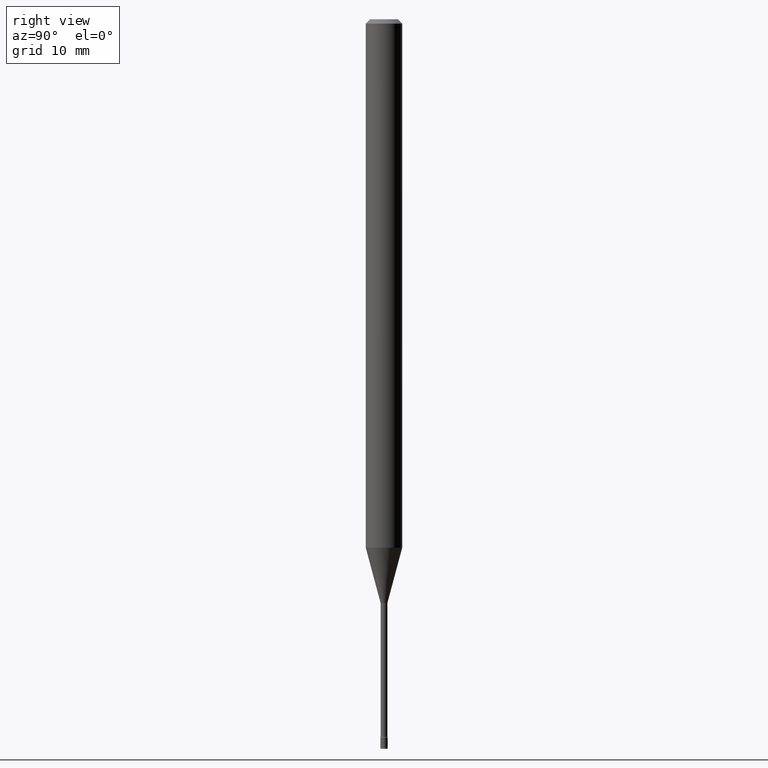
[diagram: clean part render]
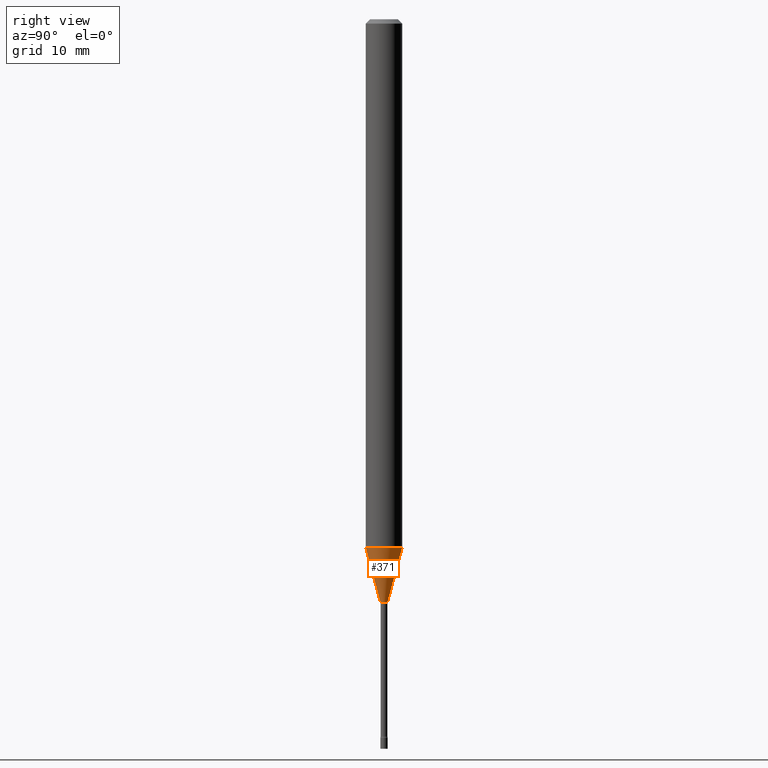
[diagram: same view with one face highlighted and labeled with its STEP entity id]
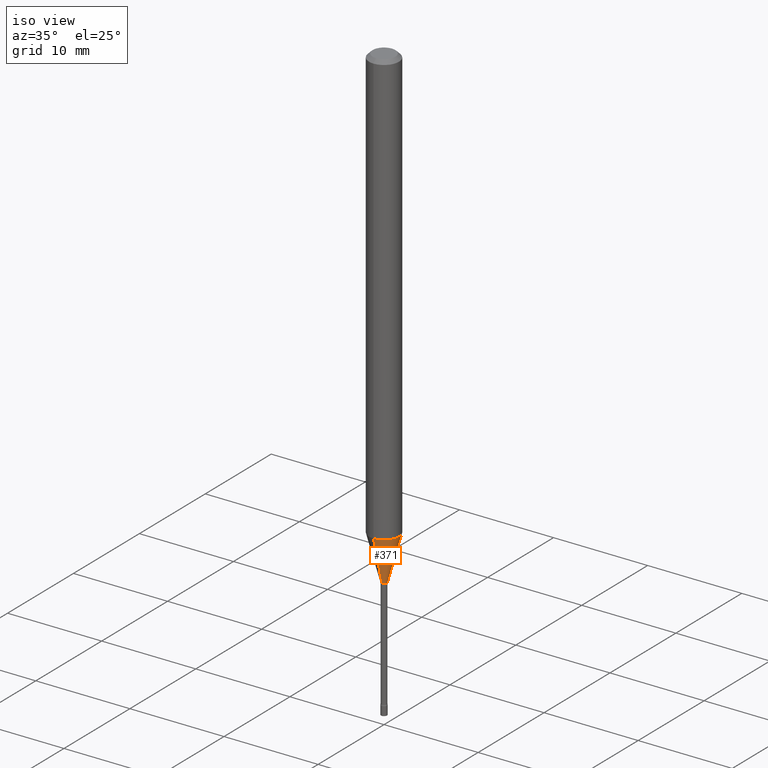
[diagram: same view with one face highlighted and labeled with its STEP entity id]
A machine part, right view. The second image highlights one B-rep face of the part: STEP entity #371.
A second angle (iso view) of the same face is appended — the face is thin or edge-on in the first view.
In plain terms, the highlighted conical surface has half-angle 15 deg.
Its self-contained STEP definition (entity closure, byte-faithful):
#7 = EDGE_CURVE ( 'NONE', #210, #359, #240, .T. ) ;
#8 = ORIENTED_EDGE ( 'NONE', *, *, #351, .F. ) ;
#54 = DIRECTION ( 'NONE',  ( -1.807323732225327773E-15, -0.2588190451025178529, 0.9659258262890690894 ) ) ;
#69 = AXIS2_PLACEMENT_3D ( 'NONE', #93, #419, #146 ) ;
#70 = CIRCLE ( 'NONE', #156, 0.06250000000000000000 ) ;
#74 = AXIS2_PLACEMENT_3D ( 'NONE', #465, #90, #296 ) ;
#87 = EDGE_CURVE ( 'NONE', #210, #129, #440, .T. ) ;
#90 = DIRECTION ( 'NONE',  ( -2.445543935234200466E-29, 3.491373749768806451E-15, 1.000000000000000000 ) ) ;
#93 = CARTESIAN_POINT ( 'NONE',  ( 4.886422999782796356E-29, -6.976087710349966842E-15, -1.998092501787273045 ) ) ;
#129 = VERTEX_POINT ( 'NONE', #342 ) ;
#138 = DIRECTION ( 'NONE',  ( -6.982962677686265922E-15, -1.000000000000000000, 4.370956789862821150E-15 ) ) ;
#140 = CARTESIAN_POINT ( 'NONE',  ( 4.427897988882776251E-29, -6.321475800253379253E-15, -1.810598421515879908 ) ) ;
#146 = DIRECTION ( 'NONE',  ( -6.982962677686265922E-15, -1.000000000000000000, 0.000000000000000000 ) ) ;
#156 = AXIS2_PLACEMENT_3D ( 'NONE', #140, #418, #138 ) ;
#202 = CARTESIAN_POINT ( 'NONE',  ( 8.712044494296022145E-17, 0.01226111260565700654, -1.998092501787273045 ) ) ;
#210 = VERTEX_POINT ( 'NONE', #271 ) ;
#239 = DIRECTION ( 'NONE',  ( 1.839019923739597554E-15, 0.2588190451025245697, 0.9659258262890670910 ) ) ;
#240 = LINE ( 'NONE', #300, #373 ) ;
#242 = VERTEX_POINT ( 'NONE', #517 ) ;
#271 = CARTESIAN_POINT ( 'NONE',  ( -8.561889171221134275E-17, -0.01226111260567096066, -1.998092501787273045 ) ) ;
#296 = DIRECTION ( 'NONE',  ( -6.982962677686265922E-15, -1.000000000000000000, 0.000000000000000000 ) ) ;
#300 = CARTESIAN_POINT ( 'NONE',  ( -8.561889171221134275E-17, -0.01226111260567096066, -1.998092501787273045 ) ) ;
#313 = CONICAL_SURFACE ( 'NONE', #74, 0.01226111260566398360, 0.2617993877991499074 ) ;
#339 = FACE_OUTER_BOUND ( 'NONE', #506, .T. ) ;
#342 = CARTESIAN_POINT ( 'NONE',  ( 2.656048273965336302E-16, 0.01226111260565700654, -1.998092501787273045 ) ) ;
#351 = EDGE_CURVE ( 'NONE', #359, #242, #70, .T. ) ;
#356 = VECTOR ( 'NONE', #239, 39.37007874015748854 ) ;
#359 = VERTEX_POINT ( 'NONE', #387 ) ;
#371 = ADVANCED_FACE ( 'NONE', ( #339 ), #313, .T. ) ;
#373 = VECTOR ( 'NONE', #54, 39.37007874015748143 ) ;
#387 = CARTESIAN_POINT ( 'NONE',  ( -4.364351673553473946E-16, -0.06250000000000632827, -1.810598421515879464 ) ) ;
#404 = ORIENTED_EDGE ( 'NONE', *, *, #444, .T. ) ;
#418 = DIRECTION ( 'NONE',  ( -2.445543935234200466E-29, 3.491373749768806451E-15, 1.000000000000000000 ) ) ;
#419 = DIRECTION ( 'NONE',  ( -2.445543935234200466E-29, 3.491373749768806451E-15, 1.000000000000000000 ) ) ;
#439 = LINE ( 'NONE', #202, #356 ) ;
#440 = CIRCLE ( 'NONE', #69, 0.01226111260566398360 ) ;
#444 = EDGE_CURVE ( 'NONE', #129, #242, #439, .T. ) ;
#465 = CARTESIAN_POINT ( 'NONE',  ( 4.886422999782796356E-29, -6.976087710349966842E-15, -1.998092501787273045 ) ) ;
#466 = ORIENTED_EDGE ( 'NONE', *, *, #7, .F. ) ;
#479 = ORIENTED_EDGE ( 'NONE', *, *, #87, .T. ) ;
#506 = EDGE_LOOP ( 'NONE', ( #479, #404, #8, #466 ) ) ;
#517 = CARTESIAN_POINT ( 'NONE',  ( 4.440892098501067924E-16, 0.06249999999999367867, -1.810598421515880130 ) ) ;